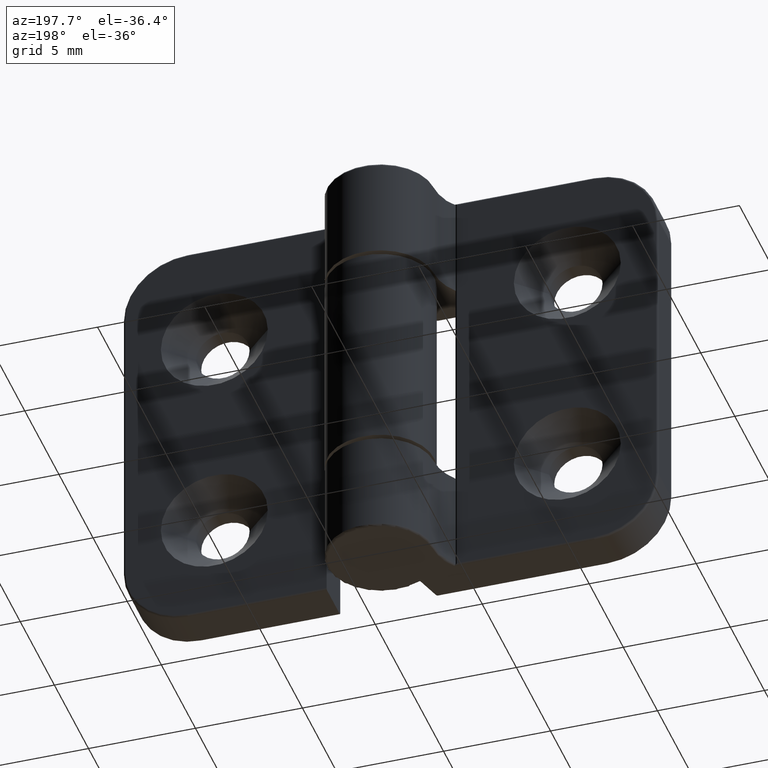
[diagram: clean part render]
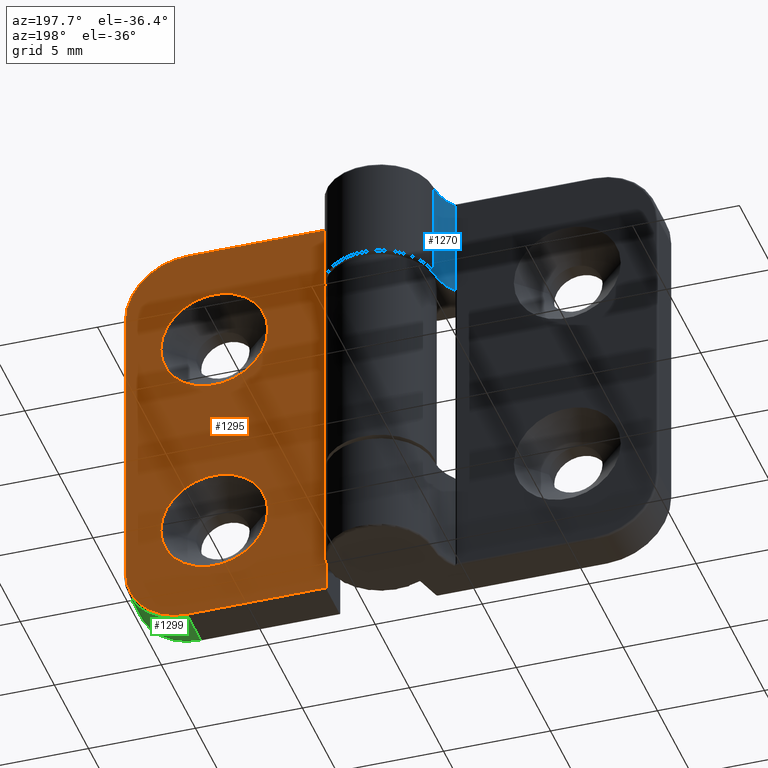
[diagram: same view with three faces highlighted in distinct colors, each labeled with its STEP entity id]
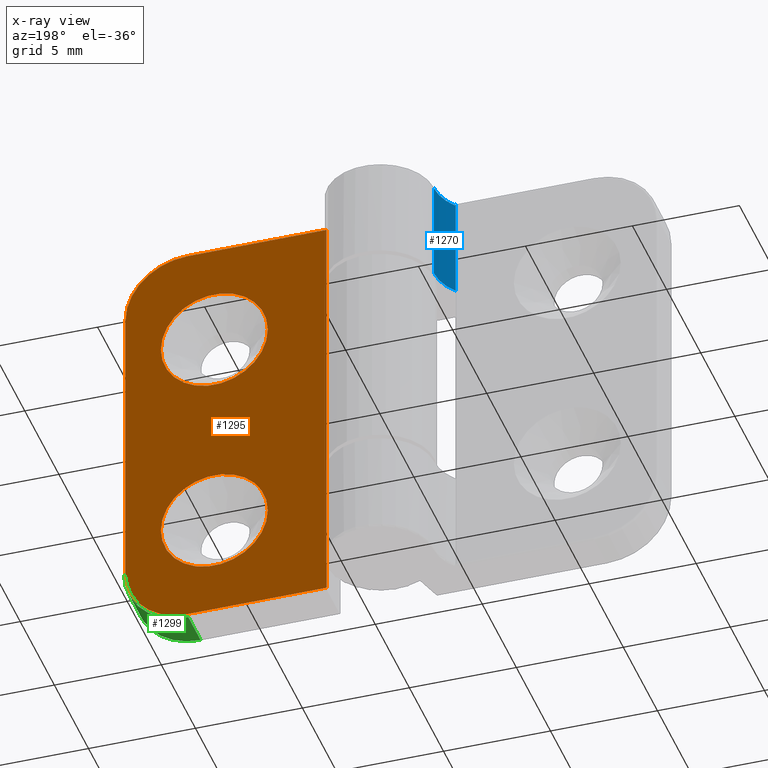
[diagram: x-ray of the same camera — body ghosted, the three highlighted faces saturated]
A machine part, auxiliary view with three faces highlighted in distinct colors.
The next image is the same camera in x-ray (body ghosted, the three faces saturated) — at least one of them is partly hidden behind the body in this view.
Their STEP definitions:

[orange] entity #1295 — the highlighted planar face has unit normal (0, 1, 0).
#70=FACE_BOUND('',#275,.T.);
#71=FACE_BOUND('',#276,.T.);
#96=PLANE('',#1466);
#177=FACE_OUTER_BOUND('',#274,.T.);
#274=EDGE_LOOP('',(#1136,#1137,#1138,#1139,#1140,#1141,#1142,#1143));
#275=EDGE_LOOP('',(#1144));
#276=EDGE_LOOP('',(#1145));
#352=LINE('',#2259,#428);
#355=LINE('',#2267,#431);
#363=LINE('',#2293,#439);
#372=LINE('',#2327,#448);
#374=LINE('',#2340,#450);
#376=LINE('',#2349,#452);
#428=VECTOR('',#1771,4.9);
#431=VECTOR('',#1776,4.9);
#439=VECTOR('',#1806,10.);
#448=VECTOR('',#1845,6.5);
#450=VECTOR('',#1861,14.);
#452=VECTOR('',#1873,6.5);
#530=CIRCLE('',#1458,2.9);
#534=CIRCLE('',#1464,2.9);
#535=CIRCLE('',#1467,2.5);
#536=CIRCLE('',#1468,2.5);
#613=VERTEX_POINT('',#2239);
#621=VERTEX_POINT('',#2257);
#624=VERTEX_POINT('',#2264);
#625=VERTEX_POINT('',#2266);
#642=VERTEX_POINT('',#2326);
#643=VERTEX_POINT('',#2330);
#645=VERTEX_POINT('',#2336);
#647=VERTEX_POINT('',#2342);
#649=VERTEX_POINT('',#2351);
#650=VERTEX_POINT('',#2353);
#776=EDGE_CURVE('',#621,#613,#352,.T.);
#779=EDGE_CURVE('',#624,#625,#355,.T.);
#793=EDGE_CURVE('',#613,#624,#363,.T.);
#810=EDGE_CURVE('',#625,#642,#372,.T.);
#814=EDGE_CURVE('',#642,#643,#530,.T.);
#817=EDGE_CURVE('',#643,#645,#374,.T.);
#820=EDGE_CURVE('',#645,#647,#534,.T.);
#822=EDGE_CURVE('',#647,#621,#376,.T.);
#823=EDGE_CURVE('',#649,#649,#535,.T.);
#824=EDGE_CURVE('',#650,#650,#536,.T.);
#1136=ORIENTED_EDGE('',*,*,#822,.F.);
#1137=ORIENTED_EDGE('',*,*,#820,.F.);
#1138=ORIENTED_EDGE('',*,*,#817,.F.);
#1139=ORIENTED_EDGE('',*,*,#814,.F.);
#1140=ORIENTED_EDGE('',*,*,#810,.F.);
#1141=ORIENTED_EDGE('',*,*,#779,.F.);
#1142=ORIENTED_EDGE('',*,*,#793,.F.);
#1143=ORIENTED_EDGE('',*,*,#776,.F.);
#1144=ORIENTED_EDGE('',*,*,#823,.T.);
#1145=ORIENTED_EDGE('',*,*,#824,.T.);
#1295=ADVANCED_FACE('',(#177,#70,#71),#96,.T.);
#1458=AXIS2_PLACEMENT_3D('',#2334,#1854,#1855);
#1464=AXIS2_PLACEMENT_3D('',#2346,#1868,#1869);
#1466=AXIS2_PLACEMENT_3D('',#2350,#1874,#1875);
#1467=AXIS2_PLACEMENT_3D('',#2352,#1876,#1877);
#1468=AXIS2_PLACEMENT_3D('',#2354,#1878,#1879);
#1771=DIRECTION('',(0.,0.,1.));
#1776=DIRECTION('',(0.,0.,1.));
#1806=DIRECTION('',(0.,0.,1.));
#1845=DIRECTION('',(-1.,0.,0.));
#1854=DIRECTION('center_axis',(0.,-1.,0.));
#1855=DIRECTION('ref_axis',(-0.707106781186548,0.,0.707106781186548));
#1861=DIRECTION('',(0.,0.,-1.));
#1868=DIRECTION('center_axis',(0.,-1.,0.));
#1869=DIRECTION('ref_axis',(-0.707106781186548,0.,-0.707106781186548));
#1873=DIRECTION('',(1.,0.,0.));
#1874=DIRECTION('center_axis',(0.,1.,0.));
#1875=DIRECTION('ref_axis',(-1.,0.,0.));
#1876=DIRECTION('center_axis',(0.,-1.,0.));
#1877=DIRECTION('ref_axis',(1.,0.,0.));
#1878=DIRECTION('center_axis',(0.,-1.,0.));
#1879=DIRECTION('ref_axis',(1.,0.,0.));
#2239=CARTESIAN_POINT('',(-3.,2.,-5.));
#2257=CARTESIAN_POINT('',(-3.,2.,-9.9));
#2259=CARTESIAN_POINT('',(-3.,2.,0.));
#2264=CARTESIAN_POINT('',(-3.,2.,5.));
#2266=CARTESIAN_POINT('',(-3.,2.,9.9));
#2267=CARTESIAN_POINT('',(-3.,2.,0.));
#2293=CARTESIAN_POINT('',(-3.,2.,0.));
#2326=CARTESIAN_POINT('',(-9.5,2.,9.9));
#2327=CARTESIAN_POINT('',(-1.49999997981037,2.,9.9));
#2330=CARTESIAN_POINT('',(-12.4,2.,7.));
#2334=CARTESIAN_POINT('Origin',(-9.5,2.,7.));
#2336=CARTESIAN_POINT('',(-12.4,2.,-7.));
#2340=CARTESIAN_POINT('',(-12.4,2.,0.));
#2342=CARTESIAN_POINT('',(-9.5,2.,-9.9));
#2346=CARTESIAN_POINT('Origin',(-9.5,2.,-7.));
#2349=CARTESIAN_POINT('',(-1.49999997981037,2.,-9.9));
#2350=CARTESIAN_POINT('Origin',(-3.,2.,0.));
#2351=CARTESIAN_POINT('',(-5.75,2.,5.));
#2352=CARTESIAN_POINT('Origin',(-8.25,2.,5.));
#2353=CARTESIAN_POINT('',(-5.75,2.,-5.));
#2354=CARTESIAN_POINT('Origin',(-8.25,2.,-5.));

[blue] entity #1270 — the highlighted cylindrical surface (partial cylindrical patch) has radius 2.5 mm, axis along (0, 0, 1).
#102=B_SPLINE_CURVE_WITH_KNOTS('',3,(#1951,#1952,#1953,#1954,#1955,#1956,
#1957,#1958),.UNSPECIFIED.,.F.,.F.,(4,2,2,4),(0.0262653887538261,0.0274286026234575,
0.0311454032431409,0.0348622038628242),.UNSPECIFIED.);
#152=FACE_OUTER_BOUND('',#245,.T.);
#245=EDGE_LOOP('',(#1027,#1028,#1029,#1030,#1031));
#307=LINE('',#1948,#383);
#345=LINE('',#2227,#421);
#383=VECTOR('',#1508,4.77454888905394);
#421=VECTOR('',#1736,4.7);
#492=CIRCLE('',#1379,2.49999999999999);
#504=CIRCLE('',#1408,2.49999999999999);
#543=VERTEX_POINT('',#1933);
#550=VERTEX_POINT('',#1946);
#551=VERTEX_POINT('',#1950);
#595=VERTEX_POINT('',#2139);
#609=VERTEX_POINT('',#2219);
#664=EDGE_CURVE('',#543,#550,#307,.T.);
#665=EDGE_CURVE('',#550,#551,#102,.T.);
#734=EDGE_CURVE('',#595,#551,#492,.T.);
#759=EDGE_CURVE('',#609,#543,#504,.T.);
#763=EDGE_CURVE('',#609,#595,#345,.T.);
#1027=ORIENTED_EDGE('',*,*,#734,.F.);
#1028=ORIENTED_EDGE('',*,*,#763,.F.);
#1029=ORIENTED_EDGE('',*,*,#759,.T.);
#1030=ORIENTED_EDGE('',*,*,#664,.T.);
#1031=ORIENTED_EDGE('',*,*,#665,.T.);
#1208=CYLINDRICAL_SURFACE('',#1412,2.49999999999999);
#1270=ADVANCED_FACE('',(#152),#1208,.F.);
#1379=AXIS2_PLACEMENT_3D('',#2158,#1655,#1656);
#1408=AXIS2_PLACEMENT_3D('',#2220,#1725,#1726);
#1412=AXIS2_PLACEMENT_3D('',#2226,#1734,#1735);
#1508=DIRECTION('',(1.06752213906265E-16,0.,1.));
#1655=DIRECTION('center_axis',(0.,0.,-1.));
#1656=DIRECTION('ref_axis',(0.948683298050514,-0.316227766016838,0.));
#1725=DIRECTION('center_axis',(-6.84997909307452E-17,0.,-1.));
#1726=DIRECTION('ref_axis',(-0.799999999999998,0.600000000000002,0.));
#1734=DIRECTION('center_axis',(0.,0.,1.));
#1735=DIRECTION('ref_axis',(-0.799999999999998,0.600000000000002,0.));
#1736=DIRECTION('',(0.,0.,1.));
#1933=CARTESIAN_POINT('',(-3.02545111117092,1.96665180548454,5.2));
#1946=CARTESIAN_POINT('',(-3.02545111124946,1.96665180533743,9.97454888905394));
#1948=CARTESIAN_POINT('',(-3.02545111117092,1.96665180548454,-2.6));
#1950=CARTESIAN_POINT('',(-3.,2.,9.9));
#1951=CARTESIAN_POINT('Ctrl Pts',(-3.02545111130317,1.96665180531423,9.97454888898135));
#1952=CARTESIAN_POINT('Ctrl Pts',(-3.02346094546152,1.96921461509519,9.97225756176089));
#1953=CARTESIAN_POINT('Ctrl Pts',(-3.02156742115204,1.97166329613711,9.96982994027966));
#1954=CARTESIAN_POINT('Ctrl Pts',(-3.01407968871771,1.98137963744971,9.95914665472598));
#1955=CARTESIAN_POINT('Ctrl Pts',(-3.00887315891711,1.98823180221898,9.94873704526946));
#1956=CARTESIAN_POINT('Ctrl Pts',(-3.00183911889854,1.99753791265214,9.92535501795661));
#1957=CARTESIAN_POINT('Ctrl Pts',(-3.,2.,9.91238933539895));
#1958=CARTESIAN_POINT('Ctrl Pts',(-3.,2.,9.9));
#2139=CARTESIAN_POINT('',(-2.5,3.5,9.9));
#2158=CARTESIAN_POINT('Origin',(-4.99999999999999,3.5,9.9));
#2219=CARTESIAN_POINT('',(-2.5,3.5,5.2));
#2220=CARTESIAN_POINT('Origin',(-4.99999999999999,3.5,5.2));
#2226=CARTESIAN_POINT('Origin',(-4.99999999999999,3.5,0.));
#2227=CARTESIAN_POINT('',(-2.5,3.5,0.));

[green] entity #1299 — the highlighted cylindrical surface (partial cylindrical patch) has radius 3 mm, axis along (-0, -1, 0).
#181=FACE_OUTER_BOUND('',#282,.T.);
#282=EDGE_LOOP('',(#1166,#1167,#1168,#1169));
#367=LINE('',#2303,#443);
#379=LINE('',#2365,#455);
#443=VECTOR('',#1816,1.8);
#455=VECTOR('',#1894,1.79999999999999);
#525=CIRCLE('',#1451,3.);
#529=CIRCLE('',#1457,3.);
#633=VERTEX_POINT('',#2295);
#635=VERTEX_POINT('',#2301);
#641=VERTEX_POINT('',#2318);
#644=VERTEX_POINT('',#2331);
#798=EDGE_CURVE('',#633,#635,#367,.T.);
#808=EDGE_CURVE('',#633,#641,#525,.T.);
#813=EDGE_CURVE('',#644,#635,#529,.T.);
#829=EDGE_CURVE('',#644,#641,#379,.T.);
#1166=ORIENTED_EDGE('',*,*,#808,.F.);
#1167=ORIENTED_EDGE('',*,*,#798,.T.);
#1168=ORIENTED_EDGE('',*,*,#813,.F.);
#1169=ORIENTED_EDGE('',*,*,#829,.T.);
#1223=CYLINDRICAL_SURFACE('',#1474,3.);
#1299=ADVANCED_FACE('',(#181),#1223,.T.);
#1451=AXIS2_PLACEMENT_3D('',#2323,#1839,#1840);
#1457=AXIS2_PLACEMENT_3D('',#2333,#1852,#1853);
#1474=AXIS2_PLACEMENT_3D('',#2364,#1892,#1893);
#1816=DIRECTION('',(-1.11022302462516E-15,1.,0.));
#1839=DIRECTION('center_axis',(5.04646829375071E-17,-1.,0.));
#1840=DIRECTION('ref_axis',(-0.707106781186548,-3.46944695195361E-17,0.707106781186548));
#1852=DIRECTION('center_axis',(0.,1.,0.));
#1853=DIRECTION('ref_axis',(-0.707106781186548,0.,0.707106781186548));
#1892=DIRECTION('center_axis',(1.11022302462516E-15,-1.,0.));
#1893=DIRECTION('ref_axis',(-0.707106781186548,-7.85046229341887E-16,0.707106781186548));
#1894=DIRECTION('',(1.11022302462516E-15,-1.,0.));
#2295=CARTESIAN_POINT('',(-9.5,0.100000000000003,10.));
#2301=CARTESIAN_POINT('',(-9.5,1.9,10.));
#2303=CARTESIAN_POINT('',(-9.5,2.75000001240543,10.));
#2318=CARTESIAN_POINT('',(-12.5,0.0999999999999995,7.));
#2323=CARTESIAN_POINT('Origin',(-9.5,0.100000000000003,7.));
#2331=CARTESIAN_POINT('',(-12.5,1.89999999999999,7.));
#2333=CARTESIAN_POINT('Origin',(-9.5,1.89999999999999,7.));
#2364=CARTESIAN_POINT('Origin',(-9.5,2.75000001240543,7.));
#2365=CARTESIAN_POINT('',(-12.5,2.75000001240543,7.));